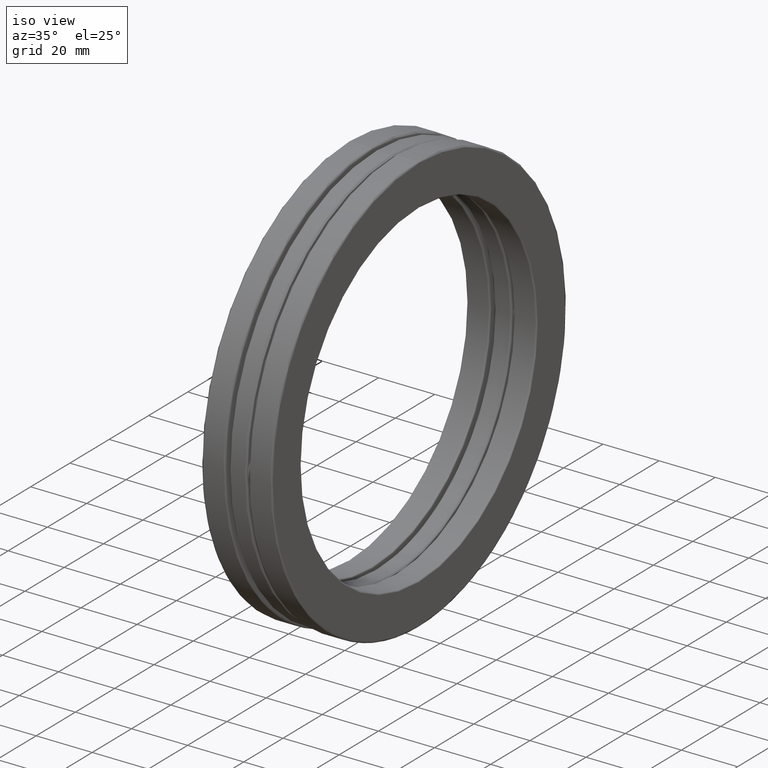
[diagram: clean part render]
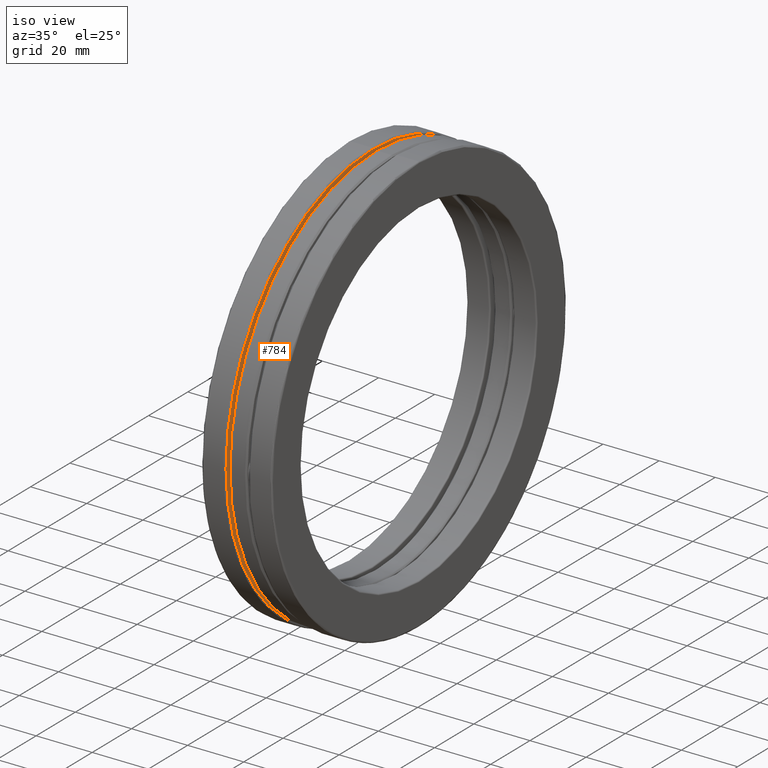
[diagram: same view with one face highlighted and labeled with its STEP entity id]
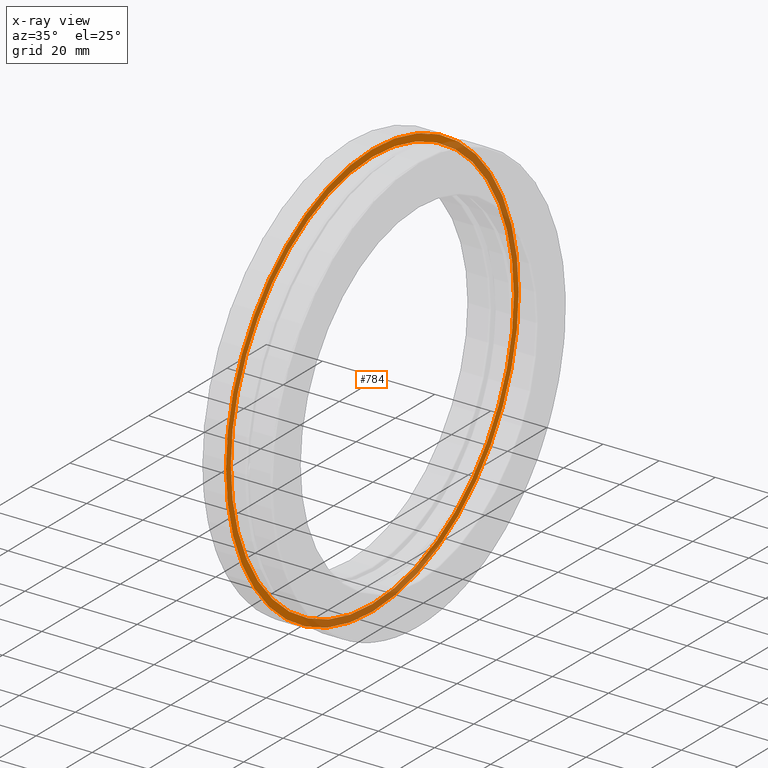
[diagram: x-ray of the same camera — body ghosted, the highlighted face saturated]
A machine part, iso view. The second image highlights one B-rep face of the part: STEP entity #784.
The next image is the same camera in x-ray: the body ghosted, the highlighted face saturated — about 28% of this face is hidden behind the body in this view.
In plain terms, the highlighted planar face has unit normal (1, 0, 0).
Its self-contained STEP definition (entity closure, byte-faithful):
#4 = EDGE_CURVE ( 'NONE', #408, #408, #273, .T. ) ;
#51 = FACE_BOUND ( 'NONE', #80, .T. ) ;
#62 = DIRECTION ( 'NONE',  ( 0.0000000000000000000, 0.0000000000000000000, 1.000000000000000000 ) ) ;
#80 = EDGE_LOOP ( 'NONE', ( #355 ) ) ;
#87 = VERTEX_POINT ( 'NONE', #184 ) ;
#152 = CARTESIAN_POINT ( 'NONE',  ( -0.1640032799999996400, 0.0000000000000000000, 2.835452027662630500 ) ) ;
#164 = DIRECTION ( 'NONE',  ( 0.0000000000000000000, 0.0000000000000000000, -1.000000000000000000 ) ) ;
#184 = CARTESIAN_POINT ( 'NONE',  ( -0.1640032799999996400, 0.0000000000000000000, 2.932999999999999400 ) ) ;
#221 = DIRECTION ( 'NONE',  ( -1.000000000000000000, -0.0000000000000000000, -0.0000000000000000000 ) ) ;
#232 = CARTESIAN_POINT ( 'NONE',  ( -0.1640032799999996400, 0.0000000000000000000, 0.0000000000000000000 ) ) ;
#273 = CIRCLE ( 'NONE', #734, 2.835452027662630500 ) ;
#280 = CIRCLE ( 'NONE', #425, 2.932999999999999400 ) ;
#317 = AXIS2_PLACEMENT_3D ( 'NONE', #232, #475, #164 ) ;
#339 = CARTESIAN_POINT ( 'NONE',  ( -0.1640032799999996400, 0.0000000000000000000, 0.0000000000000000000 ) ) ;
#355 = ORIENTED_EDGE ( 'NONE', *, *, #4, .T. ) ;
#390 = CARTESIAN_POINT ( 'NONE',  ( -0.1640032799999996400, 0.0000000000000000000, 0.0000000000000000000 ) ) ;
#408 = VERTEX_POINT ( 'NONE', #152 ) ;
#425 = AXIS2_PLACEMENT_3D ( 'NONE', #339, #221, #780 ) ;
#456 = DIRECTION ( 'NONE',  ( -1.000000000000000000, -0.0000000000000000000, -0.0000000000000000000 ) ) ;
#475 = DIRECTION ( 'NONE',  ( 1.000000000000000000, 0.0000000000000000000, 0.0000000000000000000 ) ) ;
#545 = PLANE ( 'NONE',  #317 ) ;
#626 = EDGE_LOOP ( 'NONE', ( #699 ) ) ;
#657 = EDGE_CURVE ( 'NONE', #87, #87, #280, .T. ) ;
#699 = ORIENTED_EDGE ( 'NONE', *, *, #657, .F. ) ;
#734 = AXIS2_PLACEMENT_3D ( 'NONE', #390, #456, #62 ) ;
#768 = FACE_OUTER_BOUND ( 'NONE', #626, .T. ) ;
#780 = DIRECTION ( 'NONE',  ( 0.0000000000000000000, 0.0000000000000000000, 1.000000000000000000 ) ) ;
#784 = ADVANCED_FACE ( 'NONE', ( #51, #768 ), #545, .T. ) ;